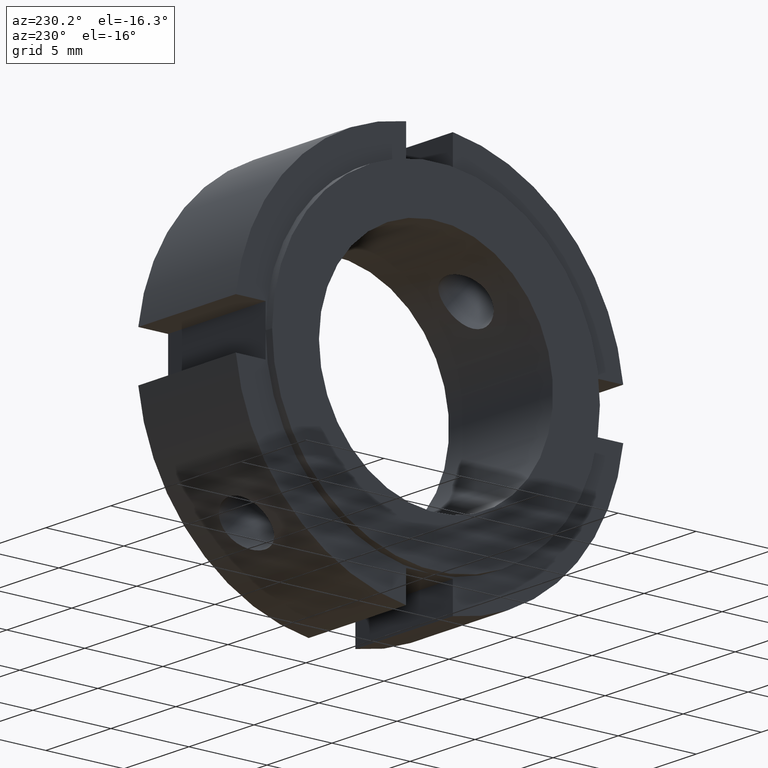
[diagram: clean part render]
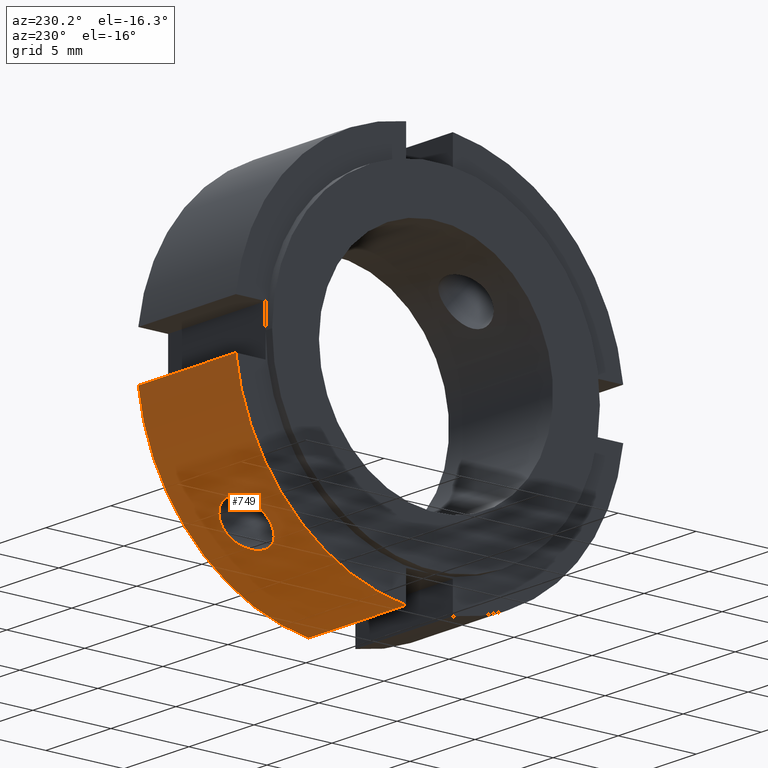
[diagram: same view with one face highlighted and labeled with its STEP entity id]
A machine part, auxiliary view. The second image highlights one B-rep face of the part: STEP entity #749.
In plain terms, the highlighted cylindrical surface (partial cylindrical patch) has radius 12.5 mm, axis along (1, 0, 0).
Its self-contained STEP definition (entity closure, byte-faithful):
#161=CARTESIAN_POINT('',(3.999999999999997,7.617978644603475,-9.910418829210260));
#162=VERTEX_POINT('',#161);
#163=CARTESIAN_POINT('',(3.999999999999997,7.617978644603475,-9.910418829210260));
#164=CARTESIAN_POINT('',(4.203783961701886,7.617978644603475,-9.910418829210260));
#165=CARTESIAN_POINT('',(4.420992470797525,7.650730264119707,-9.885508267689790));
#166=CARTESIAN_POINT('',(4.820304367155240,7.781877580564233,-9.782603362870972));
#167=CARTESIAN_POINT('',(5.002427579897873,7.880056249642751,-9.704409570854333));
#168=CARTESIAN_POINT('',(5.290011211629802,8.102134402230634,-9.519783051130412));
#169=CARTESIAN_POINT('',(5.414726466705031,8.240871038474817,-9.400957714627674));
#170=CARTESIAN_POINT('',(5.580227178760655,8.537265530439180,-9.132637006172459));
#171=CARTESIAN_POINT('',(5.620999999999997,8.694739139644604,-8.982930390019078));
#172=CARTESIAN_POINT('',(5.620999999999997,8.982930390019080,-8.694739139644600));
#173=CARTESIAN_POINT('',(5.580227178760655,9.132637006172459,-8.537265530439177));
#174=CARTESIAN_POINT('',(5.414726466705031,9.400957714627676,-8.240871038474811));
#175=CARTESIAN_POINT('',(5.290011211629801,9.519783051130411,-8.102134402230632));
#176=CARTESIAN_POINT('',(5.002427579897873,9.704409570854333,-7.880056249642750));
#177=CARTESIAN_POINT('',(4.820304367155240,9.782603362870972,-7.781877580564229));
#178=CARTESIAN_POINT('',(4.420992470797525,9.885508267689790,-7.650730264119703));
#179=CARTESIAN_POINT('',(4.203783961701886,9.910418829210263,-7.617978644603473));
#180=CARTESIAN_POINT('',(3.796216038298108,9.910418829210263,-7.617978644603473));
#181=CARTESIAN_POINT('',(3.579007529202469,9.885508267689790,-7.650730264119703));
#182=CARTESIAN_POINT('',(3.179695632844755,9.782603362870972,-7.781877580564229));
#183=CARTESIAN_POINT('',(2.997572420102121,9.704409570854333,-7.880056249642750));
#184=CARTESIAN_POINT('',(2.709988788370193,9.519783051130411,-8.102134402230632));
#185=CARTESIAN_POINT('',(2.585273533294961,9.400957714627673,-8.240871038474813));
#186=CARTESIAN_POINT('',(2.419772821239338,9.132637006172459,-8.537265530439179));
#187=CARTESIAN_POINT('',(2.378999999999997,8.982930390019080,-8.694739139644600));
#188=CARTESIAN_POINT('',(2.378999999999997,8.694739139644604,-8.982930390019078));
#189=CARTESIAN_POINT('',(2.419772821239337,8.537265530439180,-9.132637006172455));
#190=CARTESIAN_POINT('',(2.585273533294962,8.240871038474815,-9.400957714627673));
#191=CARTESIAN_POINT('',(2.709988788370192,8.102134402230634,-9.519783051130412));
#192=CARTESIAN_POINT('',(2.997572420102122,7.880056249642751,-9.704409570854333));
#193=CARTESIAN_POINT('',(3.179695632844755,7.781877580564233,-9.782603362870972));
#194=CARTESIAN_POINT('',(3.579007529202469,7.650730264119707,-9.885508267689790));
#195=CARTESIAN_POINT('',(3.796216038298108,7.617978644603475,-9.910418829210260));
#196=CARTESIAN_POINT('',(3.999999999999997,7.617978644603475,-9.910418829210260));
#197=B_SPLINE_CURVE_WITH_KNOTS('',3,(#163,#164,#165,#166,#167,#168,#169,#170,#171,#172,#173,#174,#175,#176,#177,#178,#179,#180,#181,#182,#183,#184,#185,#186,#187,#188,#189,#190,#191,#192,#193,#194,#195,#196),.UNSPECIFIED.,.T.,.U.,(4,2,2,2,2,2,2,2,2,2,2,2,2,2,2,2,4),(0.0,0.061135188510567,0.122270377021133,0.183404973246660,0.244539569472187,0.305674165697714,0.366808761923240,0.427943950433807,0.489079138944374,0.550214327454940,0.611349515965507,0.672484112191034,0.733618708416561,0.794753304642087,0.855887900867614,0.917023089378181,0.978158277888748),.UNSPECIFIED.);
#198=EDGE_CURVE('',#162,#162,#197,.T.);
#289=CARTESIAN_POINT('',(0.499999999999998,1.499999999999998,-12.409673645990853));
#290=VERTEX_POINT('',#289);
#299=CARTESIAN_POINT('',(7.999999999999998,1.499999999999998,-12.409673645990853));
#300=VERTEX_POINT('',#299);
#301=CARTESIAN_POINT('',(7.999999999999998,1.499999999999998,-12.409673645990853));
#302=DIRECTION('',(-1.0,0.0,0.0));
#303=VECTOR('',#302,7.500000000000000);
#304=LINE('',#301,#303);
#305=EDGE_CURVE('',#300,#290,#304,.T.);
#714=CARTESIAN_POINT('',(4.249999999999998,0.0,0.0));
#715=DIRECTION('',(1.0,0.0,0.0));
#716=DIRECTION('',(0.0,1.0,0.0));
#717=AXIS2_PLACEMENT_3D('',#714,#715,#716);
#718=CYLINDRICAL_SURFACE('',#717,12.499999999999996);
#719=ORIENTED_EDGE('',*,*,#305,.T.);
#720=CARTESIAN_POINT('',(0.499999999999998,12.409673645990853,-1.500000000000000));
#721=VERTEX_POINT('',#720);
#722=CARTESIAN_POINT('',(0.499999999999998,0.0,0.0));
#723=DIRECTION('',(1.0,0.0,0.0));
#724=DIRECTION('',(0.0,1.0,0.0));
#725=AXIS2_PLACEMENT_3D('',#722,#723,#724);
#726=CIRCLE('',#725,12.499999999999996);
#727=EDGE_CURVE('',#290,#721,#726,.T.);
#728=ORIENTED_EDGE('',*,*,#727,.T.);
#729=CARTESIAN_POINT('',(7.999999999999998,12.409673645990853,-1.500000000000000));
#730=VERTEX_POINT('',#729);
#731=CARTESIAN_POINT('',(0.499999999999998,12.409673645990853,-1.500000000000000));
#732=DIRECTION('',(1.0,0.0,0.0));
#733=VECTOR('',#732,7.500000000000000);
#734=LINE('',#731,#733);
#735=EDGE_CURVE('',#721,#730,#734,.T.);
#736=ORIENTED_EDGE('',*,*,#735,.T.);
#737=CARTESIAN_POINT('',(7.999999999999998,0.0,0.0));
#738=DIRECTION('',(1.0,0.0,0.0));
#739=DIRECTION('',(0.0,1.0,0.0));
#740=AXIS2_PLACEMENT_3D('',#737,#738,#739);
#741=CIRCLE('',#740,12.499999999999996);
#742=EDGE_CURVE('',#300,#730,#741,.T.);
#743=ORIENTED_EDGE('',*,*,#742,.F.);
#744=EDGE_LOOP('',(#719,#728,#736,#743));
#745=FACE_OUTER_BOUND('',#744,.T.);
#746=ORIENTED_EDGE('',*,*,#198,.T.);
#747=EDGE_LOOP('',(#746));
#748=FACE_BOUND('',#747,.T.);
#749=ADVANCED_FACE('',(#745,#748),#718,.T.);